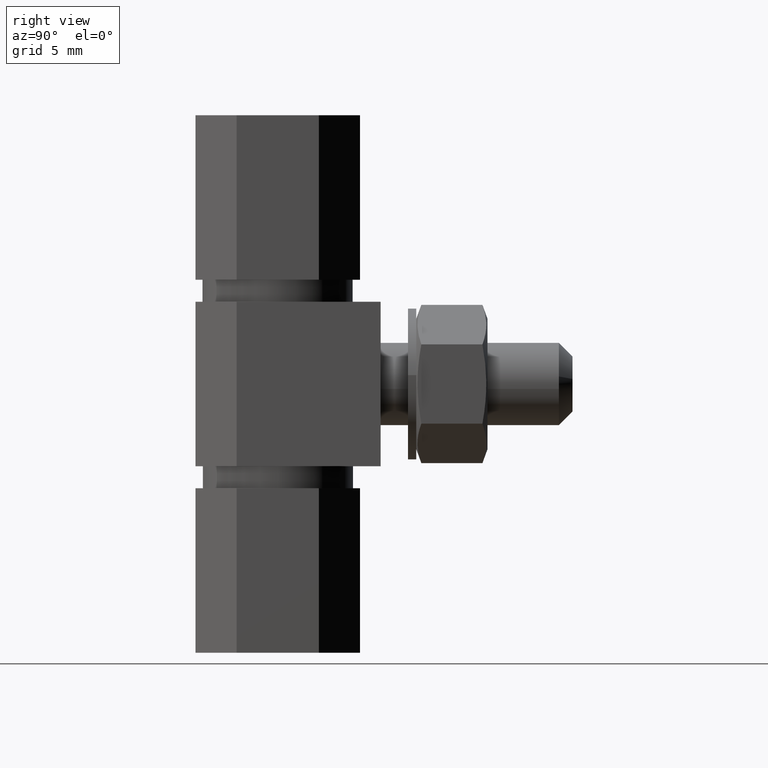
[diagram: clean part render]
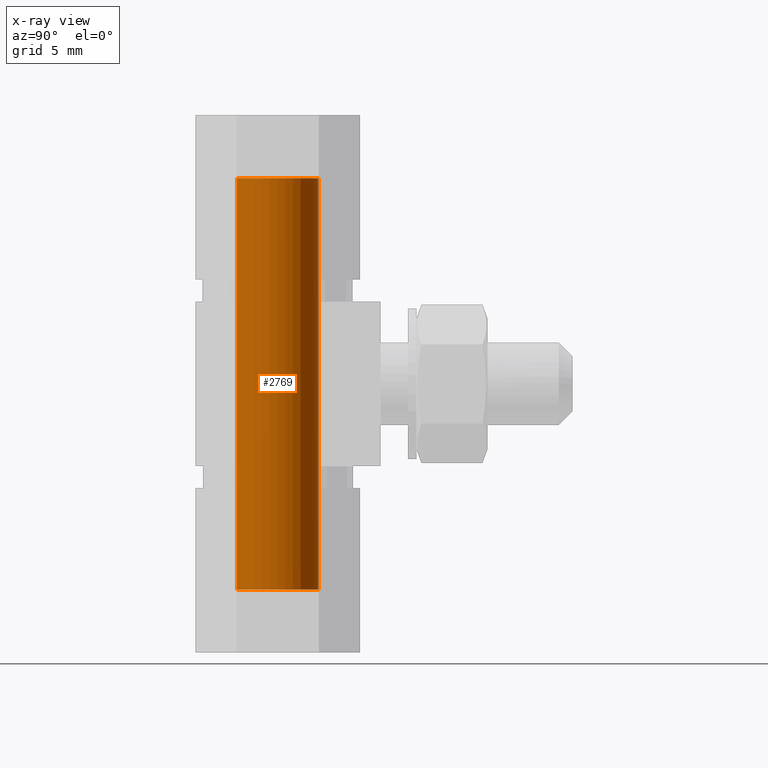
[diagram: x-ray — body ghosted, one internal face saturated and labeled with its STEP entity id]
A machine part, right view, then the same camera in x-ray: the body is ghosted and one INTERNAL B-rep face — a face not visible from any outside direction — is saturated and labeled: STEP entity #2769.
In plain terms, the highlighted face is a freeform B-spline surface patch.
Its self-contained STEP definition (entity closure, byte-faithful):
#2606=CARTESIAN_POINT('',(0.354102704008315,-2.979028579086477,4.600000599958689));
#2607=VERTEX_POINT('',#2606);
#2625=CARTESIAN_POINT('',(0.354102704008315,-2.979028579086477,34.600002024881547));
#2626=VERTEX_POINT('',#2625);
#2627=CARTESIAN_POINT('',(0.354102704008315,-2.979028579086477,34.600002024881547));
#2628=CARTESIAN_POINT('',(0.354102704008315,-2.979028579086477,4.600000599958689));
#2629=QUASI_UNIFORM_CURVE('',1,(#2627,#2628),.UNSPECIFIED.,.F.,.U.);
#2630=EDGE_CURVE('',#2626,#2607,#2629,.T.);
#2649=CARTESIAN_POINT('',(-0.183143970067334,2.994404496093546,34.600002024881547));
#2650=VERTEX_POINT('',#2649);
#2664=CARTESIAN_POINT('',(-0.183143949428331,2.994404497355859,4.600000599958690));
#2665=VERTEX_POINT('',#2664);
#2666=CARTESIAN_POINT('',(-0.183143970067334,2.994404496093546,34.600002024881547));
#2667=CARTESIAN_POINT('',(-0.183143949428331,2.994404497355859,4.600000599958690));
#2668=QUASI_UNIFORM_CURVE('',1,(#2666,#2667),.UNSPECIFIED.,.F.,.U.);
#2669=EDGE_CURVE('',#2650,#2665,#2668,.T.);
#2687=CARTESIAN_POINT('',(-0.183145618604571,2.994404395265600,35.350002060504629));
#2688=CARTESIAN_POINT('',(2.811258776661029,3.177550013870171,35.350002060504622));
#2689=CARTESIAN_POINT('',(2.994404395265600,0.183145618604571,35.350002060504629));
#2690=CARTESIAN_POINT('',(3.167358590197582,-2.644630472518504,35.350002060504629));
#2691=CARTESIAN_POINT('',(0.354102703970275,-2.979028579091000,35.350002060504636));
#2692=CARTESIAN_POINT('',(-0.183145618604571,2.994404395265600,3.831250563445042));
#2693=CARTESIAN_POINT('',(2.811258776661029,3.177550013870171,3.831250563445043));
#2694=CARTESIAN_POINT('',(2.994404395265600,0.183145618604571,3.831250563445042));
#2695=CARTESIAN_POINT('',(3.167358590197582,-2.644630472518504,3.831250563445041));
#2696=CARTESIAN_POINT('',(0.354102703970275,-2.979028579091000,3.831250563445043));
#2704=(BOUNDED_SURFACE()B_SPLINE_SURFACE(2,1,((#2687,#2692),(#2688,#2693),(#2689,#2694),(#2690,#2695),(#2691,#2696)),.UNSPECIFIED.,.F.,.F.,.U.)B_SPLINE_SURFACE_WITH_KNOTS((3,2,3),(2,2),(0.0,4.970562748477139,9.742302987015194),(0.0,31.518751497059590),.UNSPECIFIED.)GEOMETRIC_REPRESENTATION_ITEM()RATIONAL_B_SPLINE_SURFACE(((1.0,1.0),(0.707106781186548,0.707106781186548),(1.0,1.0),(0.718822509939086,0.718822509939086),(0.977505800795127,0.977505800795127)))REPRESENTATION_ITEM('')SURFACE());
#2705=CARTESIAN_POINT('',(3.0,0.0,4.600000599958690));
#2706=VERTEX_POINT('',#2705);
#2707=CARTESIAN_POINT('',(3.0,0.0,4.600000599958690));
#2708=CARTESIAN_POINT('',(3.0,-2.664523577785578,4.600000599958690));
#2709=CARTESIAN_POINT('',(0.354102704008315,-2.979028579086478,4.600000599958690));
#2717=(BOUNDED_CURVE()B_SPLINE_CURVE(2,(#2707,#2708,#2709),.UNSPECIFIED.,.F.,.U.)B_SPLINE_CURVE_WITH_KNOTS((3,3),(0.0,0.229562473511328),.UNSPECIFIED.)CURVE()GEOMETRIC_REPRESENTATION_ITEM()RATIONAL_B_SPLINE_CURVE((1.0,0.731050832857957,0.956026754179426))REPRESENTATION_ITEM(''));
#2718=EDGE_CURVE('',#2706,#2607,#2717,.T.);
#2719=ORIENTED_EDGE('',*,*,#2718,.F.);
#2720=CARTESIAN_POINT('',(-0.183143949428331,2.994404497355859,4.600000599958690));
#2721=CARTESIAN_POINT('',(-0.091657452967578,3.0,4.600000599958690));
#2722=CARTESIAN_POINT('',(0.0,3.0,4.600000599958690));
#2723=CARTESIAN_POINT('',(3.0,3.0,4.600000599958690));
#2724=CARTESIAN_POINT('',(3.0,0.0,4.600000599958690));
#2732=(BOUNDED_CURVE()B_SPLINE_CURVE(2,(#2720,#2721,#2722,#2723,#2724),.UNSPECIFIED.,.F.,.U.)B_SPLINE_CURVE_WITH_KNOTS((3,2,3),(0.739333058425043,0.750000000000000,1.0),.UNSPECIFIED.)CURVE()GEOMETRIC_REPRESENTATION_ITEM()RATIONAL_B_SPLINE_CURVE((0.976072247811927,0.987502900588864,1.0,0.707106781186548,1.0))REPRESENTATION_ITEM(''));
#2733=EDGE_CURVE('',#2665,#2706,#2732,.T.);
#2734=ORIENTED_EDGE('',*,*,#2733,.F.);
#2735=ORIENTED_EDGE('',*,*,#2669,.F.);
#2736=CARTESIAN_POINT('',(3.0,0.0,34.600002024881547));
#2737=VERTEX_POINT('',#2736);
#2738=CARTESIAN_POINT('',(-0.183143970067334,2.994404496093546,34.600002024881540));
#2739=CARTESIAN_POINT('',(-0.091657463316014,3.000000000000000,34.600002024881555));
#2740=CARTESIAN_POINT('',(0.0,3.0,34.600002024881547));
#2741=CARTESIAN_POINT('',(3.0,3.0,34.600002024881547));
#2742=CARTESIAN_POINT('',(3.0,0.0,34.600002024881547));
#2750=(BOUNDED_CURVE()B_SPLINE_CURVE(2,(#2738,#2739,#2740,#2741,#2742),.UNSPECIFIED.,.F.,.U.)B_SPLINE_CURVE_WITH_KNOTS((3,2,3),(0.739333057235760,0.750000000000000,1.0),.UNSPECIFIED.)CURVE()GEOMETRIC_REPRESENTATION_ITEM()RATIONAL_B_SPLINE_CURVE((0.976072245263065,0.987502899195532,1.0,0.707106781186548,1.0))REPRESENTATION_ITEM(''));
#2751=EDGE_CURVE('',#2650,#2737,#2750,.T.);
#2752=ORIENTED_EDGE('',*,*,#2751,.T.);
#2753=CARTESIAN_POINT('',(3.0,0.0,34.600002024881547));
#2754=CARTESIAN_POINT('',(3.0,-2.664523577785578,34.600002024881547));
#2755=CARTESIAN_POINT('',(0.354102704008315,-2.979028579086478,34.600002024881540));
#2763=(BOUNDED_CURVE()B_SPLINE_CURVE(2,(#2753,#2754,#2755),.UNSPECIFIED.,.F.,.U.)B_SPLINE_CURVE_WITH_KNOTS((3,3),(0.0,0.229562473511328),.UNSPECIFIED.)CURVE()GEOMETRIC_REPRESENTATION_ITEM()RATIONAL_B_SPLINE_CURVE((1.0,0.731050832857957,0.956026754179426))REPRESENTATION_ITEM(''));
#2764=EDGE_CURVE('',#2737,#2626,#2763,.T.);
#2765=ORIENTED_EDGE('',*,*,#2764,.T.);
#2766=ORIENTED_EDGE('',*,*,#2630,.T.);
#2767=EDGE_LOOP('',(#2719,#2734,#2735,#2752,#2765,#2766));
#2768=FACE_OUTER_BOUND('',#2767,.T.);
#2769=ADVANCED_FACE('',(#2768),#2704,.T.);